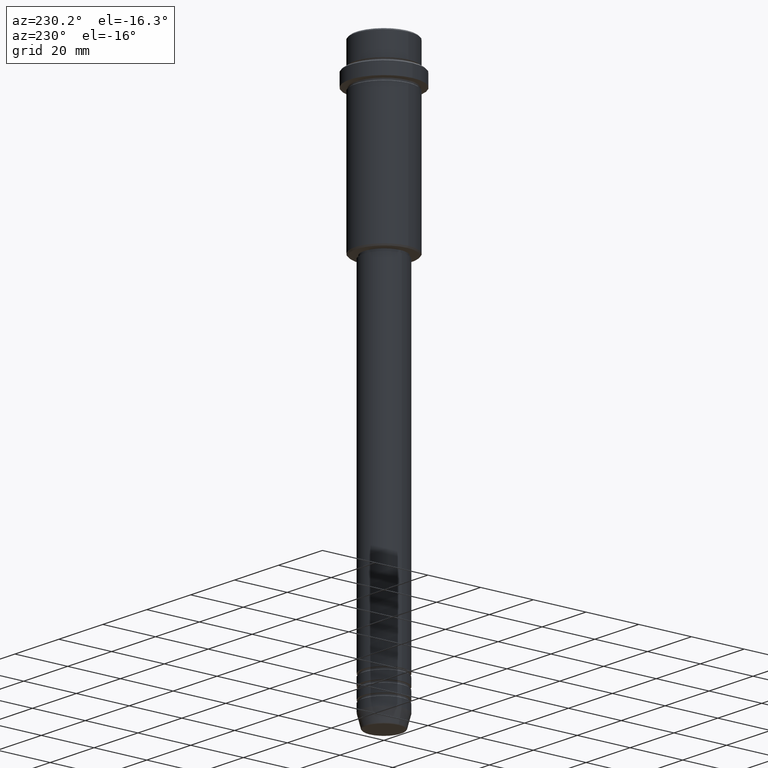
[diagram: clean part render]
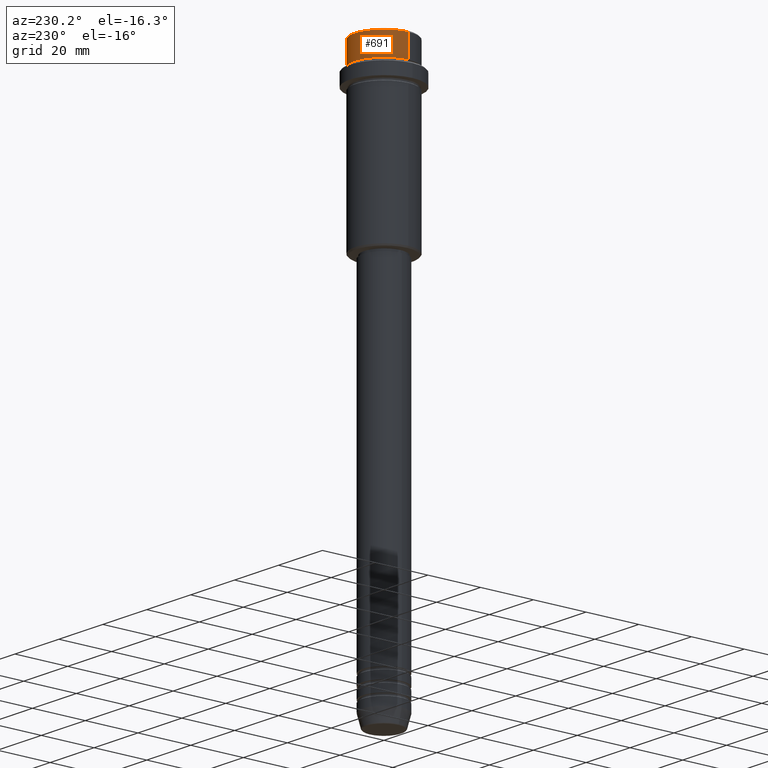
[diagram: same view with one face highlighted and labeled with its STEP entity id]
A machine part, auxiliary view. The second image highlights one B-rep face of the part: STEP entity #691.
In plain terms, the highlighted cylindrical surface (partial cylindrical patch) has radius 11 mm, axis along (-0, -0, 1).
Its self-contained STEP definition (entity closure, byte-faithful):
#6 = DIRECTION ( 'NONE',  ( 1.000000000000000000, 0.000000000000000000, 0.000000000000000000 ) ) ;
#38 = DIRECTION ( 'NONE',  ( 1.000000000000000000, 0.000000000000000000, 0.000000000000000000 ) ) ;
#111 = CYLINDRICAL_SURFACE ( 'NONE', #813, 10.99999999999998757 ) ;
#115 = CARTESIAN_POINT ( 'NONE',  ( -10.99999999999997158, 1.347111479062085841E-15, -9.000000000000000000 ) ) ;
#165 = DIRECTION ( 'NONE',  ( 0.000000000000000000, 0.000000000000000000, -1.000000000000000000 ) ) ;
#217 = EDGE_CURVE ( 'NONE', #1004, #602, #1403, .T. ) ;
#254 = DIRECTION ( 'NONE',  ( 1.000000000000000000, 0.000000000000000000, 0.000000000000000000 ) ) ;
#278 = ORIENTED_EDGE ( 'NONE', *, *, #969, .T. ) ;
#305 = DIRECTION ( 'NONE',  ( -0.000000000000000000, -0.000000000000000000, 1.000000000000000000 ) ) ;
#314 = VECTOR ( 'NONE', #1154, 1000.000000000000000 ) ;
#425 = AXIS2_PLACEMENT_3D ( 'NONE', #1328, #1100, #254 ) ;
#461 = EDGE_LOOP ( 'NONE', ( #278, #1037, #505, #880 ) ) ;
#505 = ORIENTED_EDGE ( 'NONE', *, *, #217, .T. ) ;
#537 = FACE_OUTER_BOUND ( 'NONE', #461, .T. ) ;
#602 = VERTEX_POINT ( 'NONE', #1382 ) ;
#637 = VERTEX_POINT ( 'NONE', #115 ) ;
#644 = AXIS2_PLACEMENT_3D ( 'NONE', #1356, #165, #38 ) ;
#691 = ADVANCED_FACE ( 'NONE', ( #537 ), #111, .T. ) ;
#702 = LINE ( 'NONE', #1038, #314 ) ;
#722 = CARTESIAN_POINT ( 'NONE',  ( 10.99999999999998757, 0.000000000000000000, 0.000000000000000000 ) ) ;
#813 = AXIS2_PLACEMENT_3D ( 'NONE', #1297, #1302, #6 ) ;
#846 = LINE ( 'NONE', #722, #952 ) ;
#880 = ORIENTED_EDGE ( 'NONE', *, *, #1124, .F. ) ;
#894 = EDGE_CURVE ( 'NONE', #637, #1004, #702, .T. ) ;
#952 = VECTOR ( 'NONE', #305, 1000.000000000000000 ) ;
#969 = EDGE_CURVE ( 'NONE', #1323, #637, #1113, .T. ) ;
#1004 = VERTEX_POINT ( 'NONE', #1232 ) ;
#1037 = ORIENTED_EDGE ( 'NONE', *, *, #894, .T. ) ;
#1038 = CARTESIAN_POINT ( 'NONE',  ( -10.99999999999998757, 1.347111479062086827E-15, 0.000000000000000000 ) ) ;
#1100 = DIRECTION ( 'NONE',  ( -0.000000000000000000, -0.000000000000000000, 1.000000000000000000 ) ) ;
#1113 = CIRCLE ( 'NONE', #425, 10.99999999999997158 ) ;
#1124 = EDGE_CURVE ( 'NONE', #1323, #602, #846, .T. ) ;
#1154 = DIRECTION ( 'NONE',  ( -0.000000000000000000, -0.000000000000000000, 1.000000000000000000 ) ) ;
#1232 = CARTESIAN_POINT ( 'NONE',  ( -10.99999999999998757, 1.347111479062086827E-15, -0.4999999999999605316 ) ) ;
#1297 = CARTESIAN_POINT ( 'NONE',  ( 0.000000000000000000, 0.000000000000000000, 0.000000000000000000 ) ) ;
#1302 = DIRECTION ( 'NONE',  ( -0.000000000000000000, -0.000000000000000000, 1.000000000000000000 ) ) ;
#1323 = VERTEX_POINT ( 'NONE', #1350 ) ;
#1328 = CARTESIAN_POINT ( 'NONE',  ( 0.000000000000000000, 0.000000000000000000, -9.000000000000000000 ) ) ;
#1350 = CARTESIAN_POINT ( 'NONE',  ( 10.99999999999997158, 0.000000000000000000, -9.000000000000000000 ) ) ;
#1356 = CARTESIAN_POINT ( 'NONE',  ( 0.000000000000000000, 0.000000000000000000, -0.4999999999999605316 ) ) ;
#1382 = CARTESIAN_POINT ( 'NONE',  ( 10.99999999999998757, 0.000000000000000000, -0.4999999999999605316 ) ) ;
#1403 = CIRCLE ( 'NONE', #644, 10.99999999999998757 ) ;